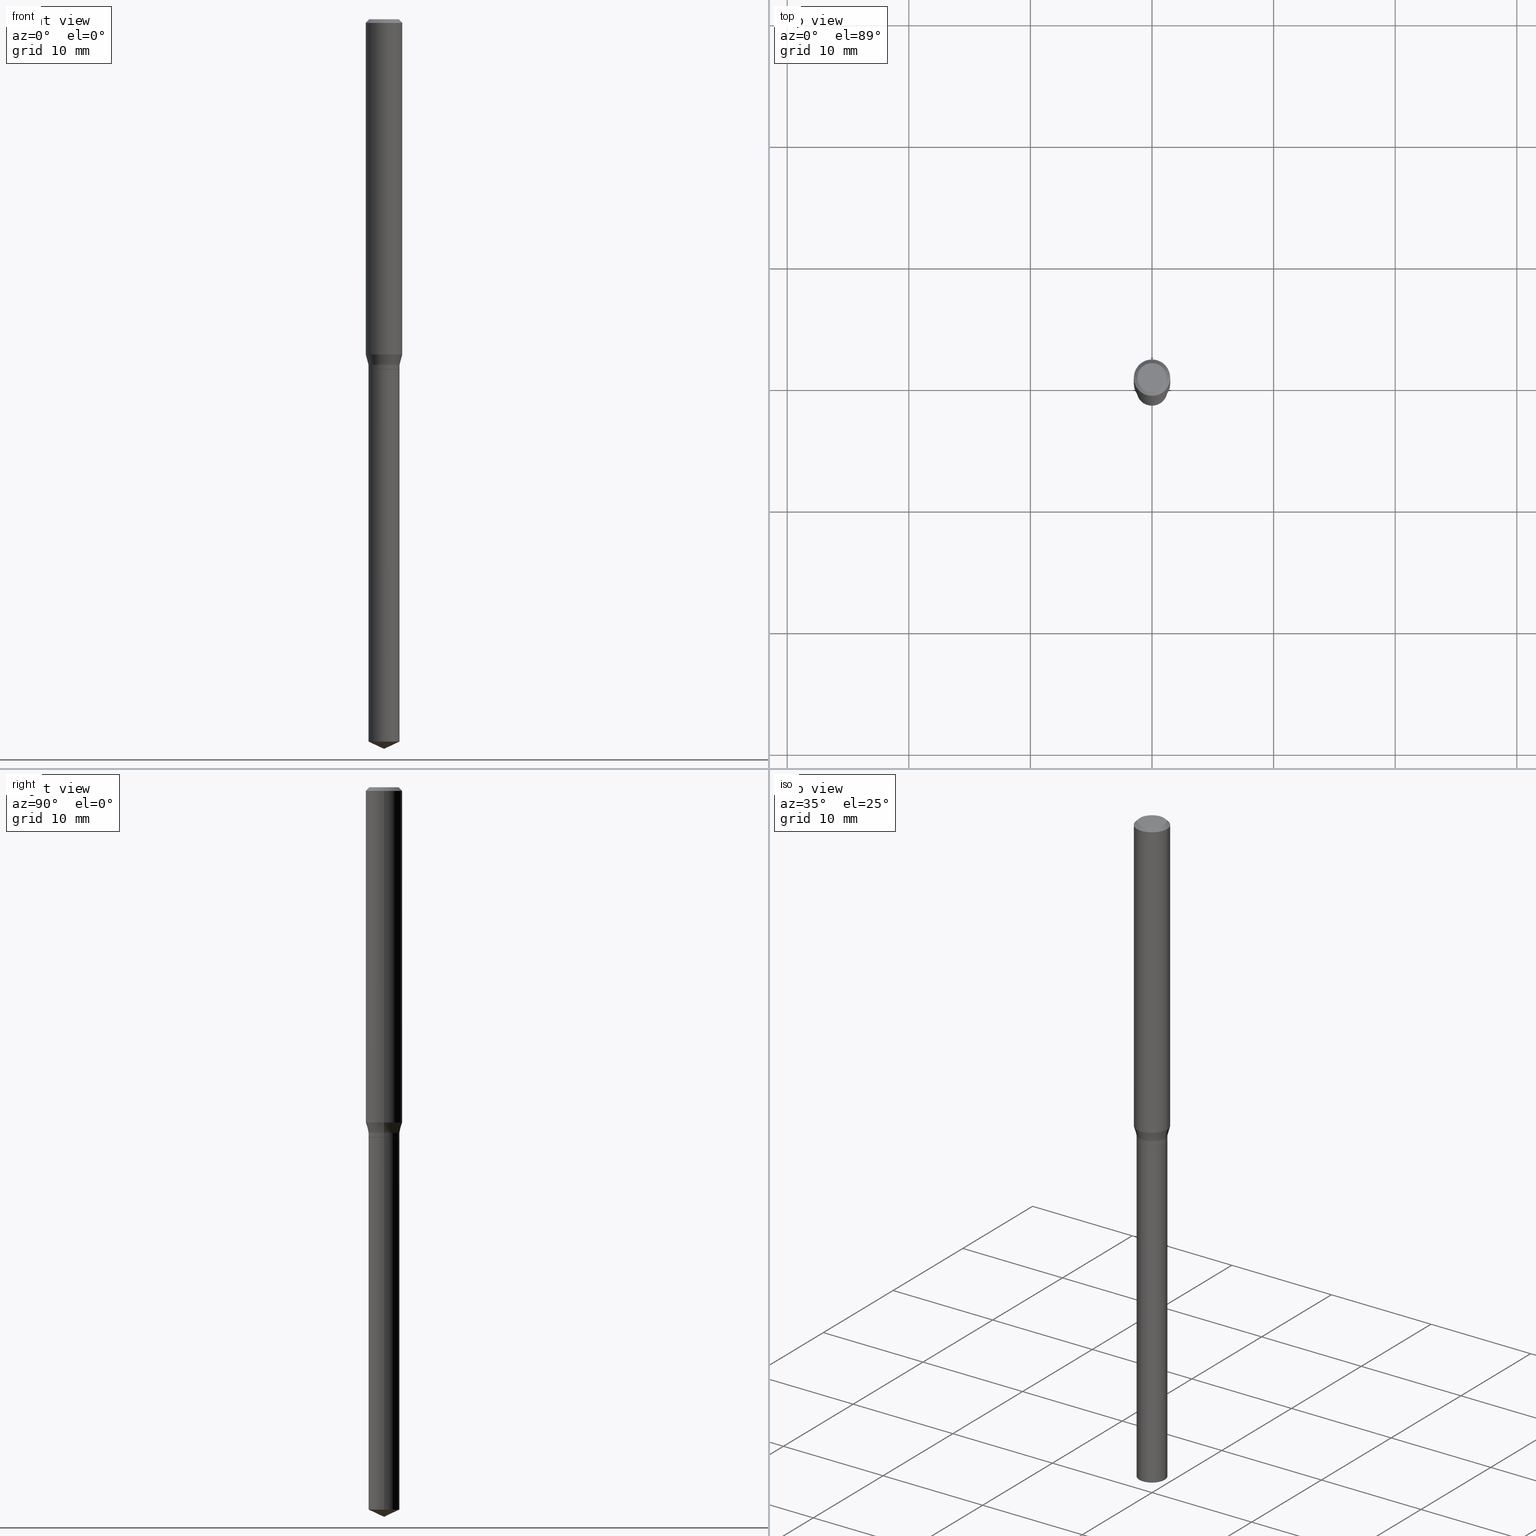
[diagram: canonical four-view strip — front | top / right | iso, engineering-drawing reading convention]
A machine part, canonical four-view strip (front | top / right | iso — engineering-drawing reading convention). The complete STEP part file that produces these views, byte-faithful:
ISO-10303-21;
HEADER;
FILE_DESCRIPTION (( 'STEP AP203' ),
    '1' );
FILE_NAME ('08011.STEP',
    '2024-04-24T08:46:55',
    ( '' ),
    ( '' ),
    'SwSTEP 2.0',
    'SolidWorks 2023',
    '' );
FILE_SCHEMA (( 'CONFIG_CONTROL_DESIGN' ));
ENDSEC;

DATA;
#1 = VERTEX_POINT ( 'NONE', #447 ) ;
#2 = CYLINDRICAL_SURFACE ( 'NONE', #413, 0.05020000000000000157 ) ;
#3 = EDGE_CURVE ( 'NONE', #255, #341, #259, .T. ) ;
#4 = AXIS2_PLACEMENT_3D ( 'NONE', #69, #177, #212 ) ;
#5 = SECURITY_CLASSIFICATION ( '', '', #98 ) ;
#6 = AXIS2_PLACEMENT_3D ( 'NONE', #14, #351, #392 ) ;
#7 = DIRECTION ( 'NONE',  ( -2.445468806185136597E-29, 3.491481338843145583E-15, 1.000000000000000000 ) ) ;
#8 = DIRECTION ( 'NONE',  ( 1.000000000000000000, 0.000000000000000000, 0.000000000000000000 ) ) ;
#9 = EDGE_CURVE ( 'NONE', #143, #186, #31, .T. ) ;
#10 = LINE ( 'NONE', #278, #71 ) ;
#11 = CARTESIAN_POINT ( 'NONE',  ( -0.05020000000000000157, -3.602298236762673113E-15, -1.133900000000000130 ) ) ;
#12 = EDGE_CURVE ( 'NONE', #376, #415, #157, .T. ) ;
#13 = DIRECTION ( 'NONE',  ( 1.000000000000000000, -6.982962677686266711E-15, 4.876185090822587894E-29 ) ) ;
#14 = CARTESIAN_POINT ( 'NONE',  ( 6.184627419380970463E-30, -7.044291925189848425E-15, -1.133900000000000130 ) ) ;
#15 = APPROVAL_DATE_TIME ( #129, #352 ) ;
#16 = CARTESIAN_POINT ( 'NONE',  ( 0.000000000000000000, 0.000000000000000000, 0.000000000000000000 ) ) ;
#17 = DIRECTION ( 'NONE',  ( -2.445468806185136597E-29, 3.491481338843145583E-15, 1.000000000000000000 ) ) ;
#18 = VERTEX_POINT ( 'NONE', #430 ) ;
#19 = ADVANCED_FACE ( 'NONE', ( #52 ), #121, .F. ) ;
#20 = PERSON_AND_ORGANIZATION ( #66, #234 ) ;
#21 = AXIS2_PLACEMENT_3D ( 'NONE', #297, #441, #27 ) ;
#22 = DIRECTION ( 'NONE',  ( -2.445468806185136877E-29, 3.491481338843145188E-15, 1.000000000000000000 ) ) ;
#23 = VECTOR ( 'NONE', #394, 39.37007874015748854 ) ;
#24 = FACE_OUTER_BOUND ( 'NONE', #73, .T. ) ;
#25 = ORIENTED_EDGE ( 'NONE', *, *, #460, .F. ) ;
#26 = APPROVAL_DATE_TIME ( #364, #271 ) ;
#27 = DIRECTION ( 'NONE',  ( 1.000000000000000000, -6.982962677686262766E-15, 0.000000000000000000 ) ) ;
#28 = EDGE_CURVE ( 'NONE', #1, #255, #190, .T. ) ;
#29 = CONICAL_SURFACE ( 'NONE', #78, 84.42940631927338302, 1.134464013796311566 ) ;
#30 = ORIENTED_EDGE ( 'NONE', *, *, #459, .F. ) ;
#31 = CIRCLE ( 'NONE', #456, 0.05020000000000000157 ) ;
#32 = ORIENTED_EDGE ( 'NONE', *, *, #301, .T. ) ;
#33 = CARTESIAN_POINT ( 'NONE',  ( 5.719441304198943975E-29, -8.165846373387565761E-15, -2.338791355560618790 ) ) ;
#34 = PRODUCT_RELATED_PRODUCT_CATEGORY ( 'detail', '', ( #475 ) ) ;
#35 = EDGE_CURVE ( 'NONE', #482, #341, #316, .T. ) ;
#36 = ADVANCED_FACE ( 'NONE', ( #426 ), #2, .T. ) ;
#37 = CC_DESIGN_PERSON_AND_ORGANIZATION_ASSIGNMENT ( #126, #469, ( #5 ) ) ;
#38 = FACE_OUTER_BOUND ( 'NONE', #437, .T. ) ;
#39 = ORIENTED_EDGE ( 'NONE', *, *, #9, .F. ) ;
#40 = VECTOR ( 'NONE', #280, 39.37007874015747433 ) ;
#41 = PRODUCT_DEFINITION_FORMATION_WITH_SPECIFIED_SOURCE ( 'ANY', '', #475, .NOT_KNOWN. ) ;
#42 = DIRECTION ( 'NONE',  ( 1.000000000000000000, -6.982962677686271444E-15, 0.000000000000000000 ) ) ;
#43 = EDGE_LOOP ( 'NONE', ( #97, #111, #250, #222 ) ) ;
#44 = CARTESIAN_POINT ( 'NONE',  ( -0.05905000000000000526, 3.711095515056363040E-16, -0.01181000000000007044 ) ) ;
#45 = EDGE_CURVE ( 'NONE', #376, #482, #10, .T. ) ;
#46 = APPROVAL_ROLE ( '' ) ;
#47 = DIRECTION ( 'NONE',  ( -2.445468806185136597E-29, 3.491481338843145583E-15, 1.000000000000000000 ) ) ;
#48 = AXIS2_PLACEMENT_3D ( 'NONE', #110, #338, #483 ) ;
#49 = APPROVAL_PERSON_ORGANIZATION ( #331, #352, #247 ) ;
#50 = CIRCLE ( 'NONE', #448, 0.05020000000000000157 ) ;
#51 = DIRECTION ( 'NONE',  ( -0.7071067811864326647, 7.493145998869937642E-15, 0.7071067811866621478 ) ) ;
#52 = FACE_OUTER_BOUND ( 'NONE', #109, .T. ) ;
#53 =( LENGTH_UNIT ( ) NAMED_UNIT ( * ) SI_UNIT ( $, .METRE. ) );
#54 = DIRECTION ( 'NONE',  ( -1.000000000000000000, 6.982962677686267499E-15, 0.000000000000000000 ) ) ;
#55 = CONICAL_SURFACE ( 'NONE', #114, 0.05020000000000000157, 0.2617993877991500740 ) ;
#56 = CALENDAR_DATE ( 2024, 24, 4 ) ;
#57 = CLOSED_SHELL ( 'NONE', ( #237, #270, #371, #36, #19 ) ) ;
#58 = FACE_OUTER_BOUND ( 'NONE', #43, .T. ) ;
#59 = AXIS2_PLACEMENT_3D ( 'NONE', #88, #196, #356 ) ;
#60 = FACE_OUTER_BOUND ( 'NONE', #104, .T. ) ;
#61 = ORIENTED_EDGE ( 'NONE', *, *, #245, .T. ) ;
#62 = CALENDAR_DATE ( 2024, 24, 4 ) ;
#63 = CARTESIAN_POINT ( 'NONE',  ( 5.776686413970529753E-29, -8.247577218615279626E-15, -2.362200000000000077 ) ) ;
#64 = AXIS2_PLACEMENT_3D ( 'NONE', #431, #362, #368 ) ;
#65 = CARTESIAN_POINT ( 'NONE',  ( 2.655219967937811055E-29, -3.790950408008074668E-15, -1.085771350353014864 ) ) ;
#66 = PERSON ( 'UNSPECIFIED', 'UNSPECIFIED', 'UNSPECIFIED', ('UNSPECIFIED'), ('UNSPECIFIED'), ('UNSPECIFIED') ) ;
#67 = CARTESIAN_POINT ( 'NONE',  ( 2.772917079333326390E-29, -3.958990690114243565E-15, -1.133900000000000130 ) ) ;
#68 = EDGE_LOOP ( 'NONE', ( #480, #383, #327, #417 ) ) ;
#69 = CARTESIAN_POINT ( 'NONE',  ( 2.888098660104663766E-31, -4.123439461173779647E-17, -0.01181000000000007044 ) ) ;
#70 = ORIENTED_EDGE ( 'NONE', *, *, #105, .T. ) ;
#71 = VECTOR ( 'NONE', #51, 39.37007874015748854 ) ;
#72 = FACE_OUTER_BOUND ( 'NONE', #339, .T. ) ;
#73 = EDGE_LOOP ( 'NONE', ( #471, #363, #487, #145 ) ) ;
#74 = DIRECTION ( 'NONE',  ( -2.445468806185136597E-29, 3.491481338843145583E-15, 1.000000000000000000 ) ) ;
#75 = ORIENTED_EDGE ( 'NONE', *, *, #144, .T. ) ;
#76 = LINE ( 'NONE', #306, #106 ) ;
#77 = ORIENTED_EDGE ( 'NONE', *, *, #93, .F. ) ;
#78 = AXIS2_PLACEMENT_3D ( 'NONE', #333, #398, #243 ) ;
#79 = APPROVAL_PERSON_ORGANIZATION ( #204, #271, #400 ) ;
#80 = ORIENTED_EDGE ( 'NONE', *, *, #112, .F. ) ;
#81 = PERSON_AND_ORGANIZATION ( #66, #234 ) ;
#82 = CARTESIAN_POINT ( 'NONE',  ( 0.000000000000000000, 0.000000000000000000, 0.000000000000000000 ) ) ;
#83 = CC_DESIGN_DATE_AND_TIME_ASSIGNMENT ( #467, #240, ( #395 ) ) ;
#84 = DIRECTION ( 'NONE',  ( 1.000000000000000000, -6.982962677686262766E-15, 0.000000000000000000 ) ) ;
#85 = LOCAL_TIME ( 4, 46, 55.00000000000000000, #433 ) ;
#86 = AXIS2_PLACEMENT_3D ( 'NONE', #462, #193, #156 ) ;
#87 = CARTESIAN_POINT ( 'NONE',  ( 2.772917079333327511E-29, -3.958990690114244354E-15, -1.133900000000000352 ) ) ;
#88 = CARTESIAN_POINT ( 'NONE',  ( 2.772917079333327511E-29, -3.958990690114244354E-15, -1.133900000000000352 ) ) ;
#89 = EDGE_CURVE ( 'NONE', #113, #281, #50, .T. ) ;
#90 = CARTESIAN_POINT ( 'NONE',  ( 2.772917079333326950E-29, -3.958990690114243565E-15, -1.133900000000000352 ) ) ;
#91 = AXIS2_PLACEMENT_3D ( 'NONE', #175, #478, #136 ) ;
#92 = LOCAL_TIME ( 4, 46, 55.00000000000000000, #132 ) ;
#93 = EDGE_CURVE ( 'NONE', #453, #484, #276, .T. ) ;
#94 = FACE_OUTER_BOUND ( 'NONE', #374, .T. ) ;
#95 = ORIENTED_EDGE ( 'NONE', *, *, #425, .T. ) ;
#96 = CARTESIAN_POINT ( 'NONE',  ( 0.05020000000000000157, -4.256814048317560752E-15, -1.118799999999999795 ) ) ;
#97 = ORIENTED_EDGE ( 'NONE', *, *, #35, .F. ) ;
#98 = SECURITY_CLASSIFICATION_LEVEL ( 'unclassified' ) ;
#99 = DIRECTION ( 'NONE',  ( 1.000000000000000000, -6.982962677686261977E-15, 0.000000000000000000 ) ) ;
#100 = AXIS2_PLACEMENT_3D ( 'NONE', #16, #208, #164 ) ;
#101 = FACE_OUTER_BOUND ( 'NONE', #409, .T. ) ;
#102 = ORIENTED_EDGE ( 'NONE', *, *, #390, .T. ) ;
#103 = LINE ( 'NONE', #63, #335 ) ;
#104 = EDGE_LOOP ( 'NONE', ( #449, #75, #102, #80 ) ) ;
#105 = EDGE_CURVE ( 'NONE', #345, #287, #428, .T. ) ;
#106 = VECTOR ( 'NONE', #414, 39.37007874015748143 ) ;
#107 = CARTESIAN_POINT ( 'NONE',  ( 2.735990500359930287E-29, -3.906269321897710213E-15, -1.118799999999999795 ) ) ;
#108 = DIRECTION ( 'NONE',  ( 1.000000000000000000, -6.982962677686264344E-15, 0.000000000000000000 ) ) ;
#109 = EDGE_LOOP ( 'NONE', ( #225, #489 ) ) ;
#110 = CARTESIAN_POINT ( 'NONE',  ( 2.888098660104663766E-31, -4.123439461173779647E-17, -0.01181000000000007044 ) ) ;
#111 = ORIENTED_EDGE ( 'NONE', *, *, #443, .T. ) ;
#112 = EDGE_CURVE ( 'NONE', #484, #287, #307, .T. ) ;
#113 = VERTEX_POINT ( 'NONE', #267 ) ;
#114 = AXIS2_PLACEMENT_3D ( 'NONE', #490, #446, #486 ) ;
#115 = AXIS2_PLACEMENT_3D ( 'NONE', #107, #260, #379 ) ;
#116 = AXIS2_PLACEMENT_3D ( 'NONE', #122, #230, #385 ) ;
#117 = APPLICATION_PROTOCOL_DEFINITION ( 'international standard', 'config_control_design', 1994, #181 ) ;
#118 = CARTESIAN_POINT ( 'NONE',  ( -0.05020000000000000850, -7.809153920035995309E-15, -2.338791355560618790 ) ) ;
#119 = ADVANCED_FACE ( 'NONE', ( #315 ), #194, .T. ) ;
#120 = CARTESIAN_POINT ( 'NONE',  ( -0.05020000000000000850, -3.575064682319696080E-15, -1.133400000000000185 ) ) ;
#121 = PLANE ( 'NONE',  #6 ) ;
#122 = CARTESIAN_POINT ( 'NONE',  ( 2.655219967937811055E-29, -3.790950408008074668E-15, -1.085771350353014864 ) ) ;
#123 = CIRCLE ( 'NONE', #406, 0.05020000000000000850 ) ;
#124 =( NAMED_UNIT ( * ) PLANE_ANGLE_UNIT ( ) SI_UNIT ( $, .RADIAN. ) );
#125 = FACE_OUTER_BOUND ( 'NONE', #402, .T. ) ;
#126 = PERSON_AND_ORGANIZATION ( #66, #234 ) ;
#127 = DIRECTION ( 'NONE',  ( -2.445468806185136877E-29, 3.491481338843145188E-15, 1.000000000000000000 ) ) ;
#128 = ADVANCED_FACE ( 'NONE', ( #319 ), #386, .T. ) ;
#129 = DATE_AND_TIME ( #165, #198 ) ;
#130 = LINE ( 'NONE', #209, #40 ) ;
#131 = ORIENTED_EDGE ( 'NONE', *, *, #12, .F. ) ;
#132 = COORDINATED_UNIVERSAL_TIME_OFFSET ( 5, 0, .BEHIND. ) ;
#133 = CARTESIAN_POINT ( 'NONE',  ( 0.04724000000000000421, -3.852183633974369838E-16, -3.380025165621689721E-19 ) ) ;
#134 = ORIENTED_EDGE ( 'NONE', *, *, #429, .T. ) ;
#135 = COORDINATED_UNIVERSAL_TIME_OFFSET ( 5, 0, .BEHIND. ) ;
#136 = DIRECTION ( 'NONE',  ( 1.000000000000000000, -6.982962677686266711E-15, 4.876176775795935793E-29 ) ) ;
#137 = ORIENTED_EDGE ( 'NONE', *, *, #438, .T. ) ;
#138 = CALENDAR_DATE ( 2024, 24, 4 ) ;
#139 = DIRECTION ( 'NONE',  ( -2.438088387897960049E-29, 3.491481338843145188E-15, 1.000000000000000000 ) ) ;
#140 = AXIS2_PLACEMENT_3D ( 'NONE', #65, #262, #108 ) ;
#141 = DIRECTION ( 'NONE',  ( 1.000000000000000000, -6.982962677686262766E-15, 0.000000000000000000 ) ) ;
#142 = ORIENTED_EDGE ( 'NONE', *, *, #192, .T. ) ;
#143 = VERTEX_POINT ( 'NONE', #118 ) ;
#144 = EDGE_CURVE ( 'NONE', #261, #344, #161, .T. ) ;
#145 = ORIENTED_EDGE ( 'NONE', *, *, #443, .F. ) ;
#146 = CARTESIAN_POINT ( 'NONE',  ( 2.771694344930234709E-29, -3.957244949444822062E-15, -1.133400000000000185 ) ) ;
#147 = CONICAL_SURFACE ( 'NONE', #21, 0.05020000000000000157, 0.2617993877991500740 ) ;
#148 = EDGE_LOOP ( 'NONE', ( #25, #210, #445, #405 ) ) ;
#149 = LOCAL_TIME ( 4, 46, 55.00000000000000000, #396 ) ;
#150 = CARTESIAN_POINT ( 'NONE',  ( -9.050161304213721862E-28, 1.292123180114298356E-13, 37.00787874015748002 ) ) ;
#151 = CC_DESIGN_PERSON_AND_ORGANIZATION_ASSIGNMENT ( #20, #292, ( #41 ) ) ;
#152 = ORIENTED_EDGE ( 'NONE', *, *, #176, .F. ) ;
#153 = DIRECTION ( 'NONE',  ( -1.000000000000000000, 6.982962677686265922E-15, -4.876176775795935793E-29 ) ) ;
#154 = ORIENTED_EDGE ( 'NONE', *, *, #245, .F. ) ;
#155 =( CONVERSION_BASED_UNIT ( 'INCH', #227 ) LENGTH_UNIT ( ) NAMED_UNIT ( #264 ) );
#156 = DIRECTION ( 'NONE',  ( 1.000000000000000000, -6.982962677686267499E-15, 0.000000000000000000 ) ) ;
#157 = CIRCLE ( 'NONE', #218, 0.04970000000000000112 ) ;
#158 = CARTESIAN_POINT ( 'NONE',  ( 2.772917079333326950E-29, -3.958990690114243565E-15, -1.133900000000000352 ) ) ;
#159 = DIRECTION ( 'NONE',  ( -2.445468806185136597E-29, 3.491481338843145583E-15, 1.000000000000000000 ) ) ;
#160 = DIRECTION ( 'NONE',  ( -0.7071067811865455743, 2.468850131082236945E-15, -0.7071067811865493491 ) ) ;
#161 = CIRCLE ( 'NONE', #116, 0.05905000000000013710 ) ;
#162 = CC_DESIGN_PERSON_AND_ORGANIZATION_ASSIGNMENT ( #457, #421, ( #475 ) ) ;
#163 = DIRECTION ( 'NONE',  ( -2.445468806185136597E-29, 3.491481338843145583E-15, 1.000000000000000000 ) ) ;
#164 = DIRECTION ( 'NONE',  ( 1.000000000000000000, -6.982962677686266711E-15, 4.876176775795935793E-29 ) ) ;
#165 = CALENDAR_DATE ( 2024, 24, 4 ) ;
#166 = CARTESIAN_POINT ( 'NONE',  ( -0.05020000000000000157, -3.575064682319696080E-15, -1.118799999999999795 ) ) ;
#167 = EDGE_LOOP ( 'NONE', ( #61, #291, #152, #188 ) ) ;
#168 = APPROVAL ( #229, 'UNSPECIFIED' ) ;
#169 = CIRCLE ( 'NONE', #404, 0.04724000000000000421 ) ;
#170 = DATE_AND_TIME ( #201, #85 ) ;
#171 = FACE_OUTER_BOUND ( 'NONE', #167, .T. ) ;
#172 = ORIENTED_EDGE ( 'NONE', *, *, #361, .T. ) ;
#173 = LINE ( 'NONE', #290, #223 ) ;
#174 = PERSON_AND_ORGANIZATION_ROLE ( 'design_supplier' ) ;
#175 = CARTESIAN_POINT ( 'NONE',  ( 0.000000000000000000, 0.000000000000000000, 0.000000000000000000 ) ) ;
#176 = EDGE_CURVE ( 'NONE', #281, #113, #342, .T. ) ;
#177 = DIRECTION ( 'NONE',  ( 2.445468806185136597E-29, -3.491481338843145583E-15, -1.000000000000000000 ) ) ;
#178 = ORIENTED_EDGE ( 'NONE', *, *, #192, .F. ) ;
#179 = DIRECTION ( 'NONE',  ( -2.445468806185136877E-29, 3.491481338843145188E-15, 1.000000000000000000 ) ) ;
#180 = ORIENTED_EDGE ( 'NONE', *, *, #301, .F. ) ;
#181 = APPLICATION_CONTEXT ( 'configuration controlled 3d designs of mechanical parts and assemblies' ) ;
#182 = CARTESIAN_POINT ( 'NONE',  ( 0.05020000000000000157, -4.256814048317560752E-15, -1.118799999999999795 ) ) ;
#183 = DIRECTION ( 'NONE',  ( -2.445468806185136597E-29, 3.491481338843145583E-15, 1.000000000000000000 ) ) ;
#184 = AXIS2_PLACEMENT_3D ( 'NONE', #158, #47, #349 ) ;
#185 = FACE_OUTER_BOUND ( 'NONE', #366, .T. ) ;
#186 = VERTEX_POINT ( 'NONE', #466 ) ;
#187 = EDGE_CURVE ( 'NONE', #341, #255, #454, .T. ) ;
#188 = ORIENTED_EDGE ( 'NONE', *, *, #226, .F. ) ;
#189 = DIRECTION ( 'NONE',  ( -2.445468806185136877E-29, 3.491481338843145188E-15, 1.000000000000000000 ) ) ;
#190 = LINE ( 'NONE', #236, #389 ) ;
#191 = AXIS2_PLACEMENT_3D ( 'NONE', #202, #17, #403 ) ;
#192 = EDGE_CURVE ( 'NONE', #453, #345, #169, .T. ) ;
#193 = DIRECTION ( 'NONE',  ( -2.445468806185136597E-29, 3.491481338843145583E-15, 1.000000000000000000 ) ) ;
#194 = CYLINDRICAL_SURFACE ( 'NONE', #375, 0.05905000000000006771 ) ;
#195 = MECHANICAL_CONTEXT ( 'NONE', #286, 'mechanical' ) ;
#196 = DIRECTION ( 'NONE',  ( -2.445468806185136597E-29, 3.491481338843145583E-15, 1.000000000000000000 ) ) ;
#197 = AXIS2_PLACEMENT_3D ( 'NONE', #285, #434, #99 ) ;
#198 = LOCAL_TIME ( 4, 46, 55.00000000000000000, #358 ) ;
#199 = CLOSED_SHELL ( 'NONE', ( #206, #128, #119, #265, #308, #284, #377, #322, #384, #381, #253, #214 ) ) ;
#200 = CARTESIAN_POINT ( 'NONE',  ( 5.967881510186281723E-30, -7.075331173027632694E-15, -1.133900000000000352 ) ) ;
#201 = CALENDAR_DATE ( 2024, 24, 4 ) ;
#202 = CARTESIAN_POINT ( 'NONE',  ( 0.000000000000000000, 0.000000000000000000, 0.000000000000000000 ) ) ;
#203 = ORIENTED_EDGE ( 'NONE', *, *, #360, .F. ) ;
#204 = PERSON_AND_ORGANIZATION ( #66, #234 ) ;
#205 = DIRECTION ( 'NONE',  ( -2.445468806185136597E-29, 3.491481338843145583E-15, 1.000000000000000000 ) ) ;
#206 = ADVANCED_FACE ( 'NONE', ( #125 ), #295, .T. ) ;
#207 = VECTOR ( 'NONE', #340, 39.37007874015747433 ) ;
#208 = DIRECTION ( 'NONE',  ( -2.445468806185136597E-29, 3.491481338843145583E-15, 1.000000000000000000 ) ) ;
#209 = CARTESIAN_POINT ( 'NONE',  ( -0.05020000000000000157, -3.549576868546140550E-15, -1.118799999999999795 ) ) ;
#210 = ORIENTED_EDGE ( 'NONE', *, *, #9, .T. ) ;
#211 = UNCERTAINTY_MEASURE_WITH_UNIT (LENGTH_MEASURE( 1.000000000000000082E-05 ), #155, 'distance_accuracy_value', 'NONE');
#212 = DIRECTION ( 'NONE',  ( -1.000000000000000000, 6.982962677686267499E-15, 0.000000000000000000 ) ) ;
#213 = EDGE_CURVE ( 'NONE', #18, #143, #332, .T. ) ;
#214 = ADVANCED_FACE ( 'NONE', ( #24 ), #233, .T. ) ;
#215 = CONICAL_SURFACE ( 'NONE', #4, 0.05905000000000000526, 0.7853981633974456145 ) ;
#216 = CIRCLE ( 'NONE', #343, 0.05020000000000000850 ) ;
#217 = DIRECTION ( 'NONE',  ( 1.000000000000000000, -6.982962677686267499E-15, 0.000000000000000000 ) ) ;
#218 = AXIS2_PLACEMENT_3D ( 'NONE', #87, #163, #424 ) ;
#219 = EDGE_LOOP ( 'NONE', ( #172, #134, #420, #435 ) ) ;
#220 = LINE ( 'NONE', #182, #207 ) ;
#221 = ORIENTED_EDGE ( 'NONE', *, *, #252, .F. ) ;
#222 = ORIENTED_EDGE ( 'NONE', *, *, #187, .F. ) ;
#223 = VECTOR ( 'NONE', #22, 39.37007874015748143 ) ;
#224 = DIRECTION ( 'NONE',  ( -2.445468806185136597E-29, 3.491481338843145583E-15, 1.000000000000000000 ) ) ;
#225 = ORIENTED_EDGE ( 'NONE', *, *, #176, .T. ) ;
#226 = EDGE_CURVE ( 'NONE', #186, #281, #173, .T. ) ;
#227 = LENGTH_MEASURE_WITH_UNIT ( LENGTH_MEASURE( 0.02539999999999999897 ), #53 );
#228 = ORIENTED_EDGE ( 'NONE', *, *, #213, .T. ) ;
#229 = APPROVAL_STATUS ( 'not_yet_approved' ) ;
#230 = DIRECTION ( 'NONE',  ( -2.445468806185136597E-29, 3.491481338843145583E-15, 1.000000000000000000 ) ) ;
#231 = DIRECTION ( 'NONE',  ( -2.445468806185136597E-29, 3.491481338843145583E-15, 1.000000000000000000 ) ) ;
#232 = CARTESIAN_POINT ( 'NONE',  ( 2.735990500359930287E-29, -3.906269321897710213E-15, -1.118799999999999795 ) ) ;
#233 = CONICAL_SURFACE ( 'NONE', #273, 0.04970000000000000112, 0.7853981633972860754 ) ;
#234 = ORGANIZATION ( 'UNSPECIFIED', 'UNSPECIFIED', '' ) ;
#235 = VECTOR ( 'NONE', #160, 39.37007874015748854 ) ;
#236 = CARTESIAN_POINT ( 'NONE',  ( 0.05020000000000000157, -3.505447264198505877E-16, 2.447840741449559928E-30 ) ) ;
#237 = ADVANCED_FACE ( 'NONE', ( #171 ), #330, .T. ) ;
#238 = APPLICATION_PROTOCOL_DEFINITION ( 'international standard', 'config_control_design', 1994, #286 ) ;
#239 = DIRECTION ( 'NONE',  ( 1.000000000000000000, -6.982962677686266711E-15, 4.876176775795936353E-29 ) ) ;
#240 = DATE_TIME_ROLE ( 'creation_date' ) ;
#241 = CARTESIAN_POINT ( 'NONE',  ( -0.05020000000000000157, 3.566924533515703044E-16, -2.469305415307962847E-30 ) ) ;
#242 = APPROVAL_STATUS ( 'not_yet_approved' ) ;
#243 = DIRECTION ( 'NONE',  ( 1.000000000000000000, -6.982962677686267499E-15, 0.000000000000000000 ) ) ;
#244 = CARTESIAN_POINT ( 'NONE',  ( 0.05020000000000000157, -4.309535416534094104E-15, -1.133900000000000352 ) ) ;
#245 = EDGE_CURVE ( 'NONE', #186, #143, #479, .T. ) ;
#246 = ORIENTED_EDGE ( 'NONE', *, *, #144, .F. ) ;
#247 = APPROVAL_ROLE ( '' ) ;
#248 = CARTESIAN_POINT ( 'NONE',  ( 2.772917079333327511E-29, -3.958990690114244354E-15, -1.133900000000000352 ) ) ;
#249 = MANIFOLD_SOLID_BREP ( 'Body-Move/Copy2[1]', #57 ) ;
#250 = ORIENTED_EDGE ( 'NONE', *, *, #28, .T. ) ;
#251 = CC_DESIGN_APPROVAL ( #271, ( #41 ) ) ;
#252 = EDGE_CURVE ( 'NONE', #18, #186, #103, .T. ) ;
#253 = ADVANCED_FACE ( 'NONE', ( #359 ), #440, .F. ) ;
#254 = CARTESIAN_POINT ( 'NONE',  ( 0.04970000000000000112, -4.306043935195251097E-15, -1.133900000000000352 ) ) ;
#255 = VERTEX_POINT ( 'NONE', #96 ) ;
#256 = ORIENTED_EDGE ( 'NONE', *, *, #187, .T. ) ;
#257 = AXIS2_PLACEMENT_3D ( 'NONE', #311, #302, #153 ) ;
#258 = CC_DESIGN_APPROVAL ( #168, ( #395 ) ) ;
#259 = CIRCLE ( 'NONE', #115, 0.05020000000000000157 ) ;
#260 = DIRECTION ( 'NONE',  ( -2.445468806185136597E-29, 3.491481338843145583E-15, 1.000000000000000000 ) ) ;
#261 = VERTEX_POINT ( 'NONE', #474 ) ;
#262 = DIRECTION ( 'NONE',  ( -2.445468806185136597E-29, 3.491481338843145583E-15, 1.000000000000000000 ) ) ;
#263 = ORIENTED_EDGE ( 'NONE', *, *, #391, .T. ) ;
#264 = DIMENSIONAL_EXPONENTS ( 1.000000000000000000, 0.000000000000000000, 0.000000000000000000, 0.000000000000000000, 0.000000000000000000, 0.000000000000000000, 0.000000000000000000 ) ;
#265 = ADVANCED_FACE ( 'NONE', ( #94 ), #147, .T. ) ;
#266 = DIRECTION ( 'NONE',  ( 1.000000000000000000, -6.982962677686271444E-15, 0.000000000000000000 ) ) ;
#267 = CARTESIAN_POINT ( 'NONE',  ( -0.05020000000000000157, -5.705726078399334605E-15, -1.133900000000000352 ) ) ;
#268 = CARTESIAN_POINT ( 'NONE',  ( -0.04724000000000000421, 3.504923541997677848E-16, -3.380025165670481712E-19 ) ) ;
#269 = DIRECTION ( 'NONE',  ( 1.000000000000000000, -6.982962677686262766E-15, 0.000000000000000000 ) ) ;
#270 = ADVANCED_FACE ( 'NONE', ( #101 ), #29, .T. ) ;
#271 = APPROVAL ( #407, 'UNSPECIFIED' ) ;
#272 = DIRECTION ( 'NONE',  ( -2.445468806185136597E-29, 3.491481338843145583E-15, 1.000000000000000000 ) ) ;
#273 = AXIS2_PLACEMENT_3D ( 'NONE', #248, #205, #408 ) ;
#274 = VECTOR ( 'NONE', #189, 39.37007874015748143 ) ;
#275 =( NAMED_UNIT ( * ) SI_UNIT ( $, .STERADIAN. ) SOLID_ANGLE_UNIT ( ) );
#276 = LINE ( 'NONE', #44, #235 ) ;
#277 = PERSON_AND_ORGANIZATION ( #66, #234 ) ;
#278 = CARTESIAN_POINT ( 'NONE',  ( -0.04970000000000000112, -3.605850950441474012E-15, -1.133900000000000352 ) ) ;
#279 = SHAPE_DEFINITION_REPRESENTATION ( #293, #289 ) ;
#280 = DIRECTION ( 'NONE',  ( -0.2588190451025213501, 5.211531920934551042E-15, 0.9659258262890682012 ) ) ;
#281 = VERTEX_POINT ( 'NONE', #244 ) ;
#282 = CIRCLE ( 'NONE', #347, 0.04724000000000000421 ) ;
#283 = CC_DESIGN_APPROVAL ( #352, ( #5 ) ) ;
#284 = ADVANCED_FACE ( 'NONE', ( #58 ), #476, .T. ) ;
#285 = CARTESIAN_POINT ( 'NONE',  ( 2.772917079333327511E-29, -3.958990690114244354E-15, -1.133900000000000352 ) ) ;
#286 = APPLICATION_CONTEXT ( 'configuration controlled 3d designs of mechanical parts and assemblies' ) ;
#287 = VERTEX_POINT ( 'NONE', #470 ) ;
#288 = DATE_AND_TIME ( #56, #357 ) ;
#289 = ADVANCED_BREP_SHAPE_REPRESENTATION ( '08011', ( #249, #416, #296 ), #455 ) ;
#290 = CARTESIAN_POINT ( 'NONE',  ( 0.05020000000000000157, -4.309535416534093315E-15, -1.133900000000000130 ) ) ;
#291 = ORIENTED_EDGE ( 'NONE', *, *, #460, .T. ) ;
#292 = PERSON_AND_ORGANIZATION_ROLE ( 'creator' ) ;
#293 = PRODUCT_DEFINITION_SHAPE ( 'NONE', 'NONE',  #395 ) ;
#294 = DIRECTION ( 'NONE',  ( 1.000000000000000000, -6.982962677686265922E-15, 4.876176775795935793E-29 ) ) ;
#295 = CONICAL_SURFACE ( 'NONE', #59, 0.04970000000000000112, 0.7853981633972860754 ) ;
#296 = AXIS2_PLACEMENT_3D ( 'NONE', #350, #313, #8 ) ;
#297 = CARTESIAN_POINT ( 'NONE',  ( 2.735990500359930287E-29, -3.906269321897710213E-15, -1.118799999999999795 ) ) ;
#298 = EDGE_LOOP ( 'NONE', ( #380, #70, #95, #77 ) ) ;
#299 = ORIENTED_EDGE ( 'NONE', *, *, #105, .F. ) ;
#300 = DESIGN_CONTEXT ( 'detailed design', #181, 'design' ) ;
#301 = EDGE_CURVE ( 'NONE', #341, #261, #130, .T. ) ;
#302 = DIRECTION ( 'NONE',  ( 2.438088387897960049E-29, -3.491481338843145188E-15, -1.000000000000000000 ) ) ;
#303 = ORIENTED_EDGE ( 'NONE', *, *, #93, .T. ) ;
#304 = AXIS2_PLACEMENT_3D ( 'NONE', #232, #7, #84 ) ;
#305 = VECTOR ( 'NONE', #354, 39.37007874015748143 ) ;
#306 = CARTESIAN_POINT ( 'NONE',  ( -0.05905000000000006771, 4.195754854663396409E-16, -2.904631170795525045E-30 ) ) ;
#307 = CIRCLE ( 'NONE', #86, 0.05905000000000000526 ) ;
#308 = ADVANCED_FACE ( 'NONE', ( #372 ), #399, .T. ) ;
#309 = EDGE_LOOP ( 'NONE', ( #299, #178, #303, #451 ) ) ;
#310 = ORIENTED_EDGE ( 'NONE', *, *, #438, .F. ) ;
#311 = CARTESIAN_POINT ( 'NONE',  ( 4.132873053354867254E-48, -5.900647395337818946E-34, -1.690012582823346072E-19 ) ) ;
#312 = ORIENTED_EDGE ( 'NONE', *, *, #213, .F. ) ;
#313 = DIRECTION ( 'NONE',  ( 0.000000000000000000, 0.000000000000000000, 1.000000000000000000 ) ) ;
#314 = VECTOR ( 'NONE', #320, 39.37007874015748854 ) ;
#315 = FACE_OUTER_BOUND ( 'NONE', #219, .T. ) ;
#316 = LINE ( 'NONE', #241, #274 ) ;
#317 = DIRECTION ( 'NONE',  ( -2.445468806185136597E-29, 3.491481338843145583E-15, 1.000000000000000000 ) ) ;
#318 = CARTESIAN_POINT ( 'NONE',  ( -0.05905000000000000526, -1.496516915843565719E-15, -0.01181000000000007044 ) ) ;
#319 = FACE_OUTER_BOUND ( 'NONE', #298, .T. ) ;
#320 = DIRECTION ( 'NONE',  ( 0.7071067811864326647, -2.468850131081054837E-15, 0.7071067811866621478 ) ) ;
#321 = CARTESIAN_POINT ( 'NONE',  ( 2.772917079333326390E-29, -3.958990690114243565E-15, -1.133900000000000130 ) ) ;
#322 = ADVANCED_FACE ( 'NONE', ( #60 ), #436, .T. ) ;
#323 = DATE_TIME_ROLE ( 'classification_date' ) ;
#324 = CARTESIAN_POINT ( 'NONE',  ( 5.776686413970529753E-29, -8.247577218615279626E-15, -2.362200000000000077 ) ) ;
#325 = CC_DESIGN_PERSON_AND_ORGANIZATION_ASSIGNMENT ( #370, #329, ( #395 ) ) ;
#326 = CARTESIAN_POINT ( 'NONE',  ( 0.05905000000000013710, -4.203294354125448799E-15, -1.085771350353014864 ) ) ;
#327 = ORIENTED_EDGE ( 'NONE', *, *, #3, .F. ) ;
#328 = CIRCLE ( 'NONE', #197, 0.04970000000000000112 ) ;
#329 = PERSON_AND_ORGANIZATION_ROLE ( 'creator' ) ;
#330 = CYLINDRICAL_SURFACE ( 'NONE', #367, 0.05020000000000000157 ) ;
#331 = PERSON_AND_ORGANIZATION ( #66, #234 ) ;
#332 = LINE ( 'NONE', #324, #464 ) ;
#333 = CARTESIAN_POINT ( 'NONE',  ( -9.050161304213721862E-28, 1.292123180114298356E-13, 37.00787874015748002 ) ) ;
#334 = AXIS2_PLACEMENT_3D ( 'NONE', #150, #74, #217 ) ;
#335 = VECTOR ( 'NONE', #477, 39.37007874015748143 ) ;
#336 = CARTESIAN_POINT ( 'NONE',  ( 8.265746106709734507E-48, -1.180129479067563789E-33, -3.380025165646692144E-19 ) ) ;
#337 = EDGE_LOOP ( 'NONE', ( #203, #131 ) ) ;
#338 = DIRECTION ( 'NONE',  ( -2.445468806185136597E-29, 3.491481338843145583E-15, 1.000000000000000000 ) ) ;
#339 = EDGE_LOOP ( 'NONE', ( #142, #263 ) ) ;
#340 = DIRECTION ( 'NONE',  ( 0.2588190451025213501, 1.565188264969621968E-15, 0.9659258262890682012 ) ) ;
#341 = VERTEX_POINT ( 'NONE', #166 ) ;
#342 = CIRCLE ( 'NONE', #184, 0.05020000000000000157 ) ;
#343 = AXIS2_PLACEMENT_3D ( 'NONE', #146, #224, #42 ) ;
#344 = VERTEX_POINT ( 'NONE', #326 ) ;
#345 = VERTEX_POINT ( 'NONE', #133 ) ;
#346 = DIRECTION ( 'NONE',  ( 1.000000000000000000, -6.982962677686262766E-15, 0.000000000000000000 ) ) ;
#347 = AXIS2_PLACEMENT_3D ( 'NONE', #336, #481, #452 ) ;
#348 = CARTESIAN_POINT ( 'NONE',  ( 2.771694344930234709E-29, -3.957244949444822062E-15, -1.133400000000000185 ) ) ;
#349 = DIRECTION ( 'NONE',  ( 1.000000000000000000, -6.982962677686262766E-15, 0.000000000000000000 ) ) ;
#350 = CARTESIAN_POINT ( 'NONE',  ( 0.000000000000000000, 0.000000000000000000, 0.000000000000000000 ) ) ;
#351 = DIRECTION ( 'NONE',  ( 2.438088387897960049E-29, -3.491481338843145188E-15, -1.000000000000000000 ) ) ;
#352 = APPROVAL ( #242, 'UNSPECIFIED' ) ;
#353 = CARTESIAN_POINT ( 'NONE',  ( 2.888098660104663766E-31, -4.123439461173779647E-17, -0.01181000000000007044 ) ) ;
#354 = DIRECTION ( 'NONE',  ( -2.445468806185136877E-29, 3.491481338843145188E-15, 1.000000000000000000 ) ) ;
#355 = CIRCLE ( 'NONE', #140, 0.05905000000000013710 ) ;
#356 = DIRECTION ( 'NONE',  ( 1.000000000000000000, -6.982962677686261977E-15, 0.000000000000000000 ) ) ;
#357 = LOCAL_TIME ( 4, 46, 55.00000000000000000, #135 ) ;
#358 = COORDINATED_UNIVERSAL_TIME_OFFSET ( 5, 0, .BEHIND. ) ;
#359 = FACE_OUTER_BOUND ( 'NONE', #337, .T. ) ;
#360 = EDGE_CURVE ( 'NONE', #415, #376, #328, .T. ) ;
#361 = EDGE_CURVE ( 'NONE', #344, #261, #355, .T. ) ;
#362 = DIRECTION ( 'NONE',  ( -2.445468806185136597E-29, 3.491481338843145583E-15, 1.000000000000000000 ) ) ;
#363 = ORIENTED_EDGE ( 'NONE', *, *, #12, .T. ) ;
#364 = DATE_AND_TIME ( #62, #149 ) ;
#365 = DIRECTION ( 'NONE',  ( -0.9063077870366488265, 7.915267918739016209E-15, 0.4226182617407018283 ) ) ;
#366 = EDGE_LOOP ( 'NONE', ( #180, #256, #137, #246 ) ) ;
#367 = AXIS2_PLACEMENT_3D ( 'NONE', #67, #401, #141 ) ;
#368 = DIRECTION ( 'NONE',  ( 1.000000000000000000, -6.982962677686262766E-15, 0.000000000000000000 ) ) ;
#369 = ORIENTED_EDGE ( 'NONE', *, *, #485, .F. ) ;
#370 = PERSON_AND_ORGANIZATION ( #66, #234 ) ;
#371 = ADVANCED_FACE ( 'NONE', ( #38 ), #419, .T. ) ;
#372 = FACE_OUTER_BOUND ( 'NONE', #68, .T. ) ;
#373 = CARTESIAN_POINT ( 'NONE',  ( 0.05905000000000006771, -4.123439461173745257E-16, 2.879382386107503723E-30 ) ) ;
#374 = EDGE_LOOP ( 'NONE', ( #411, #32, #382, #310 ) ) ;
#375 = AXIS2_PLACEMENT_3D ( 'NONE', #82, #458, #239 ) ;
#376 = VERTEX_POINT ( 'NONE', #410 ) ;
#377 = ADVANCED_FACE ( 'NONE', ( #185 ), #55, .T. ) ;
#378 = PLANE ( 'NONE',  #257 ) ;
#379 = DIRECTION ( 'NONE',  ( 1.000000000000000000, -6.982962677686262766E-15, 0.000000000000000000 ) ) ;
#380 = ORIENTED_EDGE ( 'NONE', *, *, #391, .F. ) ;
#381 = ADVANCED_FACE ( 'NONE', ( #72 ), #378, .F. ) ;
#382 = ORIENTED_EDGE ( 'NONE', *, *, #361, .F. ) ;
#383 = ORIENTED_EDGE ( 'NONE', *, *, #35, .T. ) ;
#384 = ADVANCED_FACE ( 'NONE', ( #444 ), #215, .T. ) ;
#385 = DIRECTION ( 'NONE',  ( 1.000000000000000000, -6.982962677686264344E-15, 0.000000000000000000 ) ) ;
#386 = CONICAL_SURFACE ( 'NONE', #488, 0.05905000000000000526, 0.7853981633974456145 ) ;
#387 = CC_DESIGN_SECURITY_CLASSIFICATION ( #5, ( #41 ) ) ;
#388 = CARTESIAN_POINT ( 'NONE',  ( 8.265746106709734507E-48, -1.180129479067563789E-33, -3.380025165646692144E-19 ) ) ;
#389 = VECTOR ( 'NONE', #127, 39.37007874015748143 ) ;
#390 = EDGE_CURVE ( 'NONE', #344, #287, #450, .T. ) ;
#391 = EDGE_CURVE ( 'NONE', #345, #453, #282, .T. ) ;
#392 = DIRECTION ( 'NONE',  ( -1.000000000000000000, 6.982962677686265922E-15, -4.876176775795935793E-29 ) ) ;
#393 = CC_DESIGN_PERSON_AND_ORGANIZATION_ASSIGNMENT ( #277, #174, ( #41 ) ) ;
#394 = DIRECTION ( 'NONE',  ( 0.7071067811865455743, -7.319954787623248157E-15, -0.7071067811865493491 ) ) ;
#395 = PRODUCT_DEFINITION ( 'UNKNOWN', '', #41, #300 ) ;
#396 = COORDINATED_UNIVERSAL_TIME_OFFSET ( 5, 0, .BEHIND. ) ;
#397 = VECTOR ( 'NONE', #179, 39.37007874015748143 ) ;
#398 = DIRECTION ( 'NONE',  ( -2.445468806185136597E-29, 3.491481338843145583E-15, 1.000000000000000000 ) ) ;
#399 = CYLINDRICAL_SURFACE ( 'NONE', #91, 0.05020000000000000157 ) ;
#400 = APPROVAL_ROLE ( '' ) ;
#401 = DIRECTION ( 'NONE',  ( -2.445468806185136597E-29, 3.491481338843145583E-15, 1.000000000000000000 ) ) ;
#402 = EDGE_LOOP ( 'NONE', ( #432, #442, #369, #30 ) ) ;
#403 = DIRECTION ( 'NONE',  ( 1.000000000000000000, -6.982962677686266711E-15, 4.876176775795936353E-29 ) ) ;
#404 = AXIS2_PLACEMENT_3D ( 'NONE', #388, #272, #13 ) ;
#405 = ORIENTED_EDGE ( 'NONE', *, *, #89, .F. ) ;
#406 = AXIS2_PLACEMENT_3D ( 'NONE', #348, #231, #266 ) ;
#407 = APPROVAL_STATUS ( 'not_yet_approved' ) ;
#408 = DIRECTION ( 'NONE',  ( 1.000000000000000000, -6.982962677686261977E-15, 0.000000000000000000 ) ) ;
#409 = EDGE_LOOP ( 'NONE', ( #221, #228, #154 ) ) ;
#410 = CARTESIAN_POINT ( 'NONE',  ( -0.04970000000000000112, -3.603201723267362811E-15, -1.133900000000000352 ) ) ;
#411 = ORIENTED_EDGE ( 'NONE', *, *, #3, .T. ) ;
#412 = CIRCLE ( 'NONE', #48, 0.05905000000000000526 ) ;
#413 = AXIS2_PLACEMENT_3D ( 'NONE', #321, #159, #468 ) ;
#414 = DIRECTION ( 'NONE',  ( -2.445468806185136877E-29, 3.491481338843145188E-15, 1.000000000000000000 ) ) ;
#415 = VERTEX_POINT ( 'NONE', #254 ) ;
#416 = MANIFOLD_SOLID_BREP ( 'Body-Move/Copy2[2]', #199 ) ;
#417 = ORIENTED_EDGE ( 'NONE', *, *, #28, .F. ) ;
#418 = ORIENTED_EDGE ( 'NONE', *, *, #252, .T. ) ;
#419 = CONICAL_SURFACE ( 'NONE', #334, 84.42940631927338302, 1.134464013796311566 ) ;
#420 = ORIENTED_EDGE ( 'NONE', *, *, #425, .F. ) ;
#421 = PERSON_AND_ORGANIZATION_ROLE ( 'design_owner' ) ;
#422 = CARTESIAN_POINT ( 'NONE',  ( 0.05905000000000000526, -4.463468013801467941E-16, -0.01181000000000007044 ) ) ;
#423 = LINE ( 'NONE', #11, #305 ) ;
#424 = DIRECTION ( 'NONE',  ( 1.000000000000000000, -6.982962677686261977E-15, 0.000000000000000000 ) ) ;
#425 = EDGE_CURVE ( 'NONE', #287, #484, #412, .T. ) ;
#426 = FACE_OUTER_BOUND ( 'NONE', #148, .T. ) ;
#427 = LINE ( 'NONE', #461, #314 ) ;
#428 = LINE ( 'NONE', #422, #23 ) ;
#429 = EDGE_CURVE ( 'NONE', #261, #484, #76, .T. ) ;
#430 = CARTESIAN_POINT ( 'NONE',  ( 5.776686413970529753E-29, -8.247577218615279626E-15, -2.362200000000000077 ) ) ;
#431 = CARTESIAN_POINT ( 'NONE',  ( 5.719441304198943975E-29, -8.165846373387565761E-15, -2.338791355560618790 ) ) ;
#432 = ORIENTED_EDGE ( 'NONE', *, *, #360, .T. ) ;
#433 = COORDINATED_UNIVERSAL_TIME_OFFSET ( 5, 0, .BEHIND. ) ;
#434 = DIRECTION ( 'NONE',  ( -2.445468806185136597E-29, 3.491481338843145583E-15, 1.000000000000000000 ) ) ;
#435 = ORIENTED_EDGE ( 'NONE', *, *, #390, .F. ) ;
#436 = CYLINDRICAL_SURFACE ( 'NONE', #191, 0.05905000000000006771 ) ;
#437 = EDGE_LOOP ( 'NONE', ( #312, #418, #39 ) ) ;
#438 = EDGE_CURVE ( 'NONE', #255, #344, #220, .T. ) ;
#439 = CC_DESIGN_DATE_AND_TIME_ASSIGNMENT ( #288, #323, ( #5 ) ) ;
#440 = PLANE ( 'NONE',  #473 ) ;
#441 = DIRECTION ( 'NONE',  ( -2.445468806185136597E-29, 3.491481338843145583E-15, 1.000000000000000000 ) ) ;
#442 = ORIENTED_EDGE ( 'NONE', *, *, #45, .T. ) ;
#443 = EDGE_CURVE ( 'NONE', #482, #1, #216, .T. ) ;
#444 = FACE_OUTER_BOUND ( 'NONE', #309, .T. ) ;
#445 = ORIENTED_EDGE ( 'NONE', *, *, #226, .T. ) ;
#446 = DIRECTION ( 'NONE',  ( -2.445468806185136597E-29, 3.491481338843145583E-15, 1.000000000000000000 ) ) ;
#447 = CARTESIAN_POINT ( 'NONE',  ( 0.05020000000000000850, -4.307789675864672600E-15, -1.133400000000000185 ) ) ;
#448 = AXIS2_PLACEMENT_3D ( 'NONE', #90, #317, #269 ) ;
#449 = ORIENTED_EDGE ( 'NONE', *, *, #429, .F. ) ;
#450 = LINE ( 'NONE', #373, #397 ) ;
#451 = ORIENTED_EDGE ( 'NONE', *, *, #112, .T. ) ;
#452 = DIRECTION ( 'NONE',  ( 1.000000000000000000, -6.982962677686266711E-15, 4.876185090822587894E-29 ) ) ;
#453 = VERTEX_POINT ( 'NONE', #268 ) ;
#454 = CIRCLE ( 'NONE', #304, 0.05020000000000000157 ) ;
#455 =( GEOMETRIC_REPRESENTATION_CONTEXT ( 3 ) GLOBAL_UNCERTAINTY_ASSIGNED_CONTEXT ( ( #211 ) ) GLOBAL_UNIT_ASSIGNED_CONTEXT ( ( #155, #124, #275 ) ) REPRESENTATION_CONTEXT ( 'NONE', 'WORKASPACE' ) );
#456 = AXIS2_PLACEMENT_3D ( 'NONE', #33, #183, #346 ) ;
#457 = PERSON_AND_ORGANIZATION ( #66, #234 ) ;
#458 = DIRECTION ( 'NONE',  ( -2.445468806185136597E-29, 3.491481338843145583E-15, 1.000000000000000000 ) ) ;
#459 = EDGE_CURVE ( 'NONE', #415, #1, #427, .T. ) ;
#460 = EDGE_CURVE ( 'NONE', #143, #113, #423, .T. ) ;
#461 = CARTESIAN_POINT ( 'NONE',  ( 0.04970000000000000112, -4.306043935195251097E-15, -1.133900000000000352 ) ) ;
#462 = CARTESIAN_POINT ( 'NONE',  ( 2.888098660104663766E-31, -4.123439461173779647E-17, -0.01181000000000007044 ) ) ;
#463 = DIRECTION ( 'NONE',  ( 2.445468806185136597E-29, -3.491481338843145583E-15, -1.000000000000000000 ) ) ;
#464 = VECTOR ( 'NONE', #365, 39.37007874015748143 ) ;
#465 = APPROVAL_PERSON_ORGANIZATION ( #81, #168, #46 ) ;
#466 = CARTESIAN_POINT ( 'NONE',  ( 0.05020000000000000850, -8.516391099807416299E-15, -2.338791355560618790 ) ) ;
#467 = DATE_AND_TIME ( #138, #92 ) ;
#468 = DIRECTION ( 'NONE',  ( 1.000000000000000000, -6.982962677686262766E-15, 0.000000000000000000 ) ) ;
#469 = PERSON_AND_ORGANIZATION_ROLE ( 'classification_officer' ) ;
#470 = CARTESIAN_POINT ( 'NONE',  ( 0.05905000000000000526, -4.535783407291118600E-16, -0.01181000000000007044 ) ) ;
#471 = ORIENTED_EDGE ( 'NONE', *, *, #45, .F. ) ;
#472 = APPROVAL_DATE_TIME ( #170, #168 ) ;
#473 = AXIS2_PLACEMENT_3D ( 'NONE', #200, #139, #294 ) ;
#474 = CARTESIAN_POINT ( 'NONE',  ( -0.05905000000000013710, -3.371374922541734386E-15, -1.085771350353014864 ) ) ;
#475 = PRODUCT ( '08011', '08011', '', ( #195 ) ) ;
#476 = CYLINDRICAL_SURFACE ( 'NONE', #100, 0.05020000000000000157 ) ;
#477 = DIRECTION ( 'NONE',  ( 0.9063077870366488265, -4.853149677051363013E-15, 0.4226182617407018283 ) ) ;
#478 = DIRECTION ( 'NONE',  ( -2.445468806185136597E-29, 3.491481338843145583E-15, 1.000000000000000000 ) ) ;
#479 = CIRCLE ( 'NONE', #64, 0.05020000000000000157 ) ;
#480 = ORIENTED_EDGE ( 'NONE', *, *, #485, .T. ) ;
#481 = DIRECTION ( 'NONE',  ( -2.445468806185136597E-29, 3.491481338843145583E-15, 1.000000000000000000 ) ) ;
#482 = VERTEX_POINT ( 'NONE', #120 ) ;
#483 = DIRECTION ( 'NONE',  ( 1.000000000000000000, -6.982962677686267499E-15, 0.000000000000000000 ) ) ;
#484 = VERTEX_POINT ( 'NONE', #318 ) ;
#485 = EDGE_CURVE ( 'NONE', #1, #482, #123, .T. ) ;
#486 = DIRECTION ( 'NONE',  ( 1.000000000000000000, -6.982962677686262766E-15, 0.000000000000000000 ) ) ;
#487 = ORIENTED_EDGE ( 'NONE', *, *, #459, .T. ) ;
#488 = AXIS2_PLACEMENT_3D ( 'NONE', #353, #463, #54 ) ;
#489 = ORIENTED_EDGE ( 'NONE', *, *, #89, .T. ) ;
#490 = CARTESIAN_POINT ( 'NONE',  ( 2.735990500359930287E-29, -3.906269321897710213E-15, -1.118799999999999795 ) ) ;
ENDSEC;
END-ISO-10303-21;
